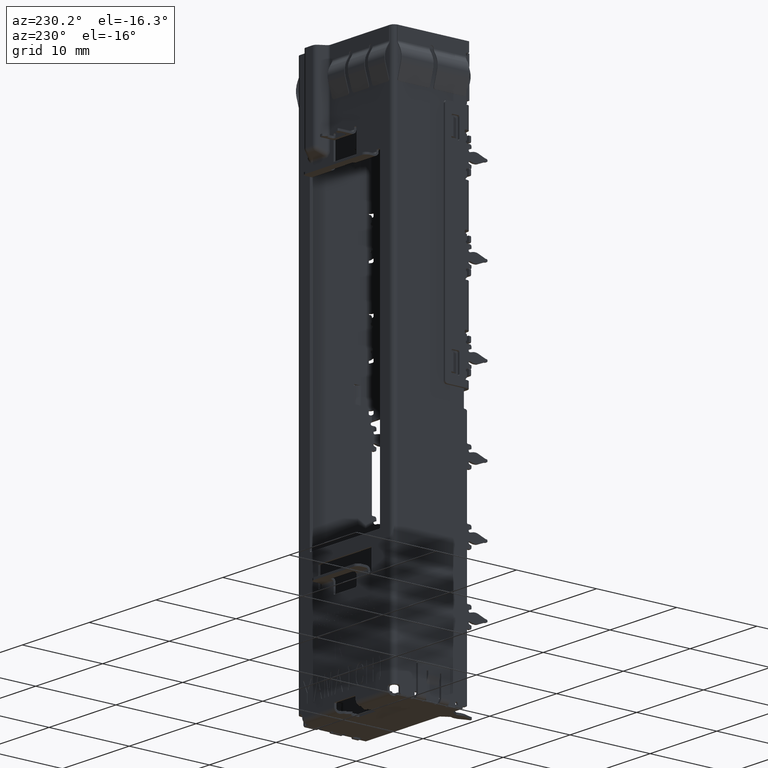
[diagram: clean part render]
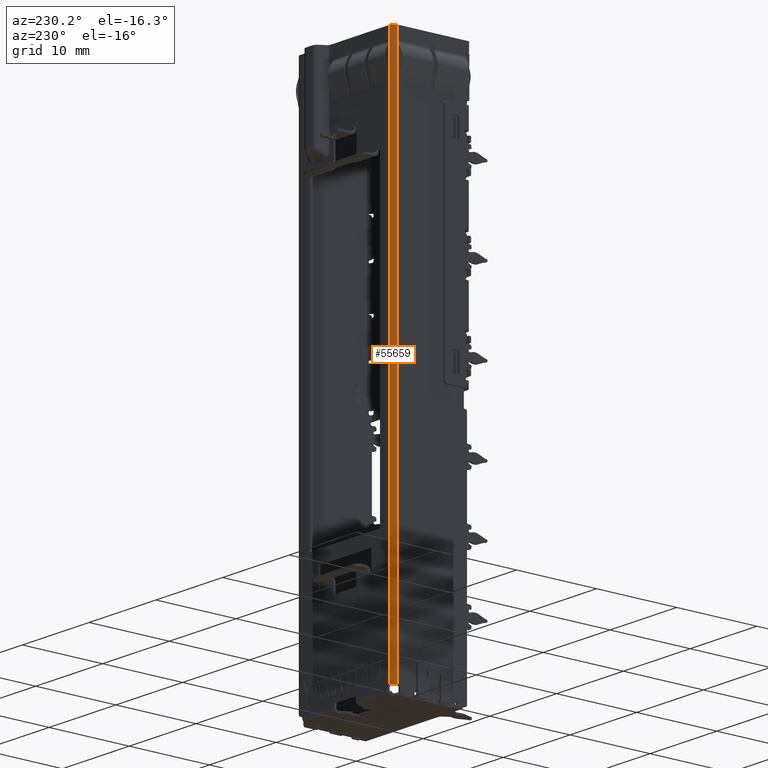
[diagram: same view with one face highlighted and labeled with its STEP entity id]
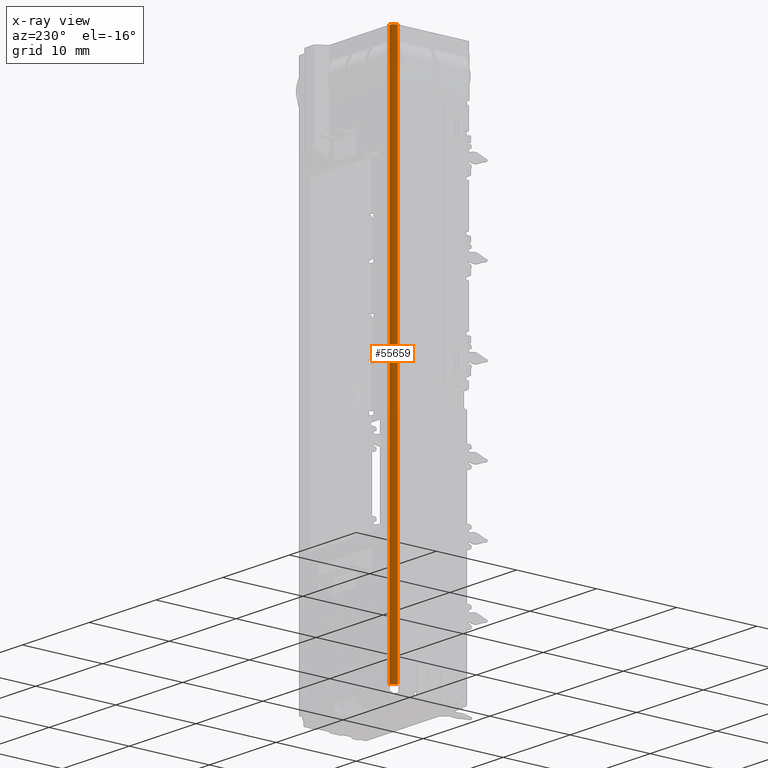
[diagram: x-ray of the same camera — body ghosted, the highlighted face saturated]
A machine part, auxiliary view. The second image highlights one B-rep face of the part: STEP entity #55659.
The next image is the same camera in x-ray: the body ghosted, the highlighted face saturated — about 0% of this face is hidden behind the body in this view.
In plain terms, the highlighted cylindrical surface (edge-blend (fillet) strip) has radius 0.55 mm, axis along (0, 0, -1).
Its self-contained STEP definition (entity closure, byte-faithful):
#2254 = EDGE_CURVE ( 'NONE', #22157, #3315, #3237, .T. ) ;
#3237 = CIRCLE ( 'NONE', #22815, 0.5499999999999931610 ) ;
#3315 = VERTEX_POINT ( 'NONE', #45137 ) ;
#3643 = VECTOR ( 'NONE', #45940, 1000.000000000000000 ) ;
#5285 = VERTEX_POINT ( 'NONE', #56134 ) ;
#5890 = CARTESIAN_POINT ( 'NONE',  ( -7.250000000000000000, 9.199999999999995737, -65.90000000000000568 ) ) ;
#6751 = CARTESIAN_POINT ( 'NONE',  ( -6.699999999999998401, 9.199999999999997513, 75.31240317319257827 ) ) ;
#7071 = FACE_OUTER_BOUND ( 'NONE', #31670, .T. ) ;
#12031 = LINE ( 'NONE', #5890, #3643 ) ;
#12267 = AXIS2_PLACEMENT_3D ( 'NONE', #6751, #37989, #42497 ) ;
#13347 = DIRECTION ( 'NONE',  ( 0.0000000000000000000, 0.0000000000000000000, -1.000000000000000000 ) ) ;
#14797 = ORIENTED_EDGE ( 'NONE', *, *, #40712, .T. ) ;
#21122 = CARTESIAN_POINT ( 'NONE',  ( -6.699999999999998401, 9.749999999999996447, -65.90000000000000568 ) ) ;
#22157 = VERTEX_POINT ( 'NONE', #47845 ) ;
#22815 = AXIS2_PLACEMENT_3D ( 'NONE', #49377, #27659, #35889 ) ;
#22836 = EDGE_CURVE ( 'NONE', #57465, #22157, #23027, .T. ) ;
#23027 = LINE ( 'NONE', #21122, #23700 ) ;
#23700 = VECTOR ( 'NONE', #53231, 1000.000000000000000 ) ;
#25151 = CIRCLE ( 'NONE', #25606, 0.5499999999999931610 ) ;
#25606 = AXIS2_PLACEMENT_3D ( 'NONE', #54188, #13347, #44608 ) ;
#27659 = DIRECTION ( 'NONE',  ( -0.0000000000000000000, -0.0000000000000000000, 1.000000000000000000 ) ) ;
#27978 = CYLINDRICAL_SURFACE ( 'NONE', #12267, 0.5499999999999931610 ) ;
#31670 = EDGE_LOOP ( 'NONE', ( #48218, #14797, #35217, #39068 ) ) ;
#35217 = ORIENTED_EDGE ( 'NONE', *, *, #2254, .F. ) ;
#35889 = DIRECTION ( 'NONE',  ( -1.000000000000000000, 9.462128050782701620E-15, 0.0000000000000000000 ) ) ;
#37989 = DIRECTION ( 'NONE',  ( 0.0000000000000000000, 0.0000000000000000000, -1.000000000000000000 ) ) ;
#39068 = ORIENTED_EDGE ( 'NONE', *, *, #22836, .F. ) ;
#40712 = EDGE_CURVE ( 'NONE', #5285, #3315, #12031, .T. ) ;
#42497 = DIRECTION ( 'NONE',  ( -1.000000000000000000, 0.0000000000000000000, 0.0000000000000000000 ) ) ;
#42876 = EDGE_CURVE ( 'NONE', #5285, #57465, #25151, .T. ) ;
#44608 = DIRECTION ( 'NONE',  ( -1.000000000000000000, 0.0000000000000000000, 0.0000000000000000000 ) ) ;
#45137 = CARTESIAN_POINT ( 'NONE',  ( -7.249999999999992006, 9.199999999999995737, 0.0000000000000000000 ) ) ;
#45940 = DIRECTION ( 'NONE',  ( 0.0000000000000000000, 0.0000000000000000000, 1.000000000000000000 ) ) ;
#47845 = CARTESIAN_POINT ( 'NONE',  ( -6.699999999999998401, 9.749999999999991118, 0.0000000000000000000 ) ) ;
#48218 = ORIENTED_EDGE ( 'NONE', *, *, #42876, .F. ) ;
#49377 = CARTESIAN_POINT ( 'NONE',  ( -6.699999999999998401, 9.199999999999997513, 0.0000000000000000000 ) ) ;
#49871 = CARTESIAN_POINT ( 'NONE',  ( -6.699999999999998401, 9.749999999999991118, -65.89999999999999147 ) ) ;
#53231 = DIRECTION ( 'NONE',  ( 0.0000000000000000000, 0.0000000000000000000, 1.000000000000000000 ) ) ;
#54188 = CARTESIAN_POINT ( 'NONE',  ( -6.699999999999998401, 9.199999999999997513, -65.89999999999999147 ) ) ;
#55659 = ADVANCED_FACE ( 'NONE', ( #7071 ), #27978, .T. ) ;
#56134 = CARTESIAN_POINT ( 'NONE',  ( -7.249999999999992006, 9.199999999999995737, -65.90000000000000568 ) ) ;
#57465 = VERTEX_POINT ( 'NONE', #49871 ) ;